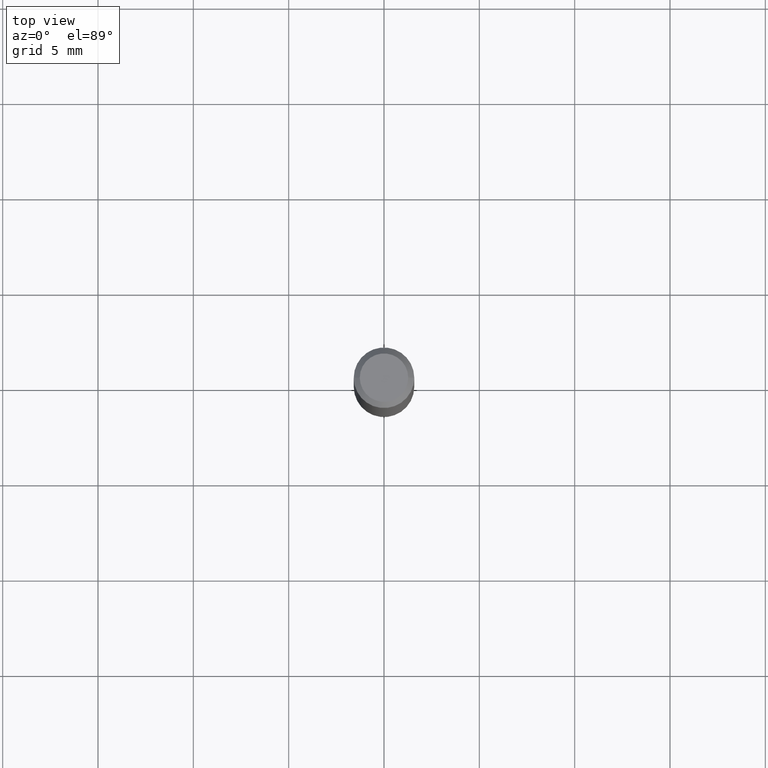
[diagram: clean part render]
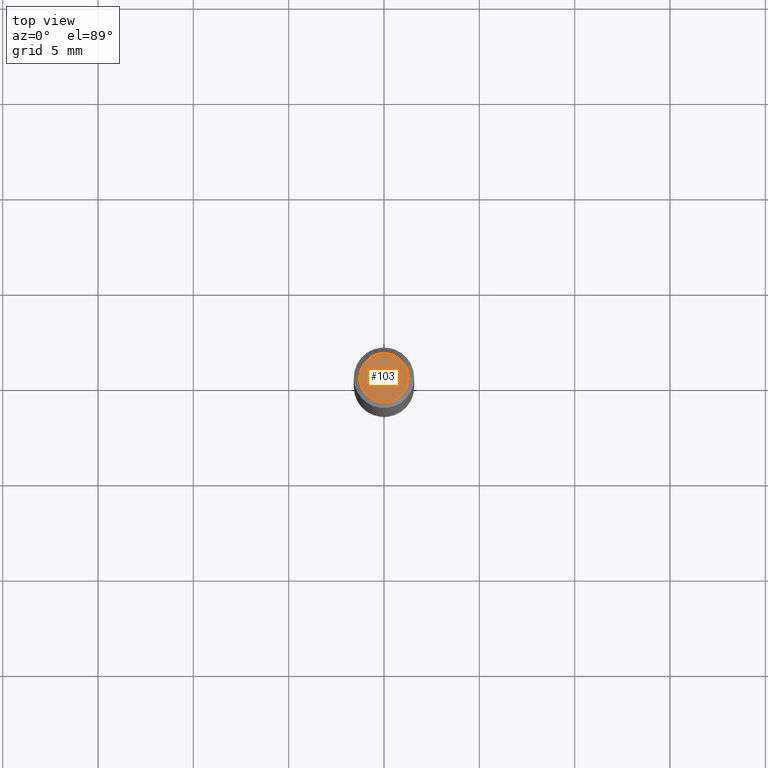
[diagram: same view with one face highlighted and labeled with its STEP entity id]
A machine part, top view. The second image highlights one B-rep face of the part: STEP entity #103.
In plain terms, the highlighted planar face has unit normal (0, -0, -1).
Its self-contained STEP definition (entity closure, byte-faithful):
#28 = CIRCLE ( 'NONE', #112, 0.04999999999999999584 ) ;
#36 = AXIS2_PLACEMENT_3D ( 'NONE', #370, #443, #271 ) ;
#63 = EDGE_CURVE ( 'NONE', #182, #158, #465, .T. ) ;
#90 = EDGE_CURVE ( 'NONE', #158, #182, #28, .T. ) ;
#103 = ADVANCED_FACE ( 'NONE', ( #414 ), #305, .F. ) ;
#112 = AXIS2_PLACEMENT_3D ( 'NONE', #289, #251, #213 ) ;
#158 = VERTEX_POINT ( 'NONE', #384 ) ;
#182 = VERTEX_POINT ( 'NONE', #210 ) ;
#183 = CARTESIAN_POINT ( 'NONE',  ( -8.265746106709734507E-48, 1.180129479067563789E-33, 3.380025165646692144E-19 ) ) ;
#210 = CARTESIAN_POINT ( 'NONE',  ( 0.04999999999999999584, -4.077247707424184705E-16, 3.380025165673154903E-19 ) ) ;
#213 = DIRECTION ( 'NONE',  ( 1.000000000000000000, -6.982962677686265922E-15, 4.876194921942043128E-29 ) ) ;
#221 = DIRECTION ( 'NONE',  ( 1.000000000000000000, -6.982962677686265922E-15, 4.876194921942043128E-29 ) ) ;
#233 = AXIS2_PLACEMENT_3D ( 'NONE', #183, #257, #221 ) ;
#251 = DIRECTION ( 'NONE',  ( -2.445468806185136597E-29, 3.491481338843145583E-15, 1.000000000000000000 ) ) ;
#257 = DIRECTION ( 'NONE',  ( -2.445468806185136597E-29, 3.491481338843145583E-15, 1.000000000000000000 ) ) ;
#271 = DIRECTION ( 'NONE',  ( -1.000000000000000000, 6.982962677686265922E-15, -4.876176775795935793E-29 ) ) ;
#289 = CARTESIAN_POINT ( 'NONE',  ( -8.265746106709734507E-48, 1.180129479067563789E-33, 3.380025165646692144E-19 ) ) ;
#305 = PLANE ( 'NONE',  #36 ) ;
#335 = ORIENTED_EDGE ( 'NONE', *, *, #63, .T. ) ;
#370 = CARTESIAN_POINT ( 'NONE',  ( -4.132873053354867254E-48, 5.900647395337818946E-34, 1.690012582823346072E-19 ) ) ;
#384 = CARTESIAN_POINT ( 'NONE',  ( -0.04999999999999999584, 3.709698922520826725E-16, 3.380025165621512536E-19 ) ) ;
#414 = FACE_OUTER_BOUND ( 'NONE', #457, .T. ) ;
#428 = ORIENTED_EDGE ( 'NONE', *, *, #90, .T. ) ;
#443 = DIRECTION ( 'NONE',  ( 2.438088387897960049E-29, -3.491481338843145188E-15, -1.000000000000000000 ) ) ;
#457 = EDGE_LOOP ( 'NONE', ( #428, #335 ) ) ;
#465 = CIRCLE ( 'NONE', #233, 0.04999999999999999584 ) ;